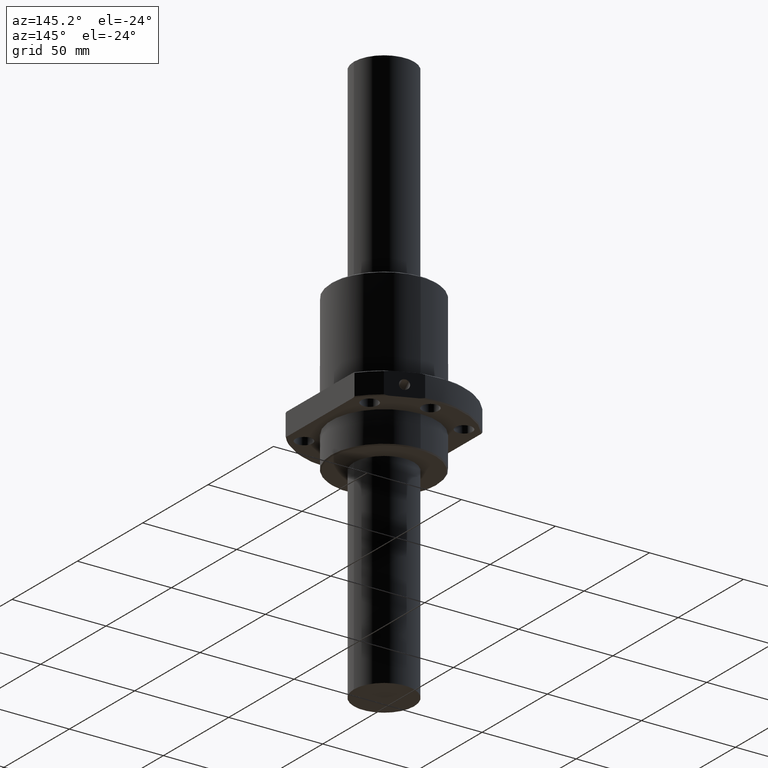
[diagram: clean part render]
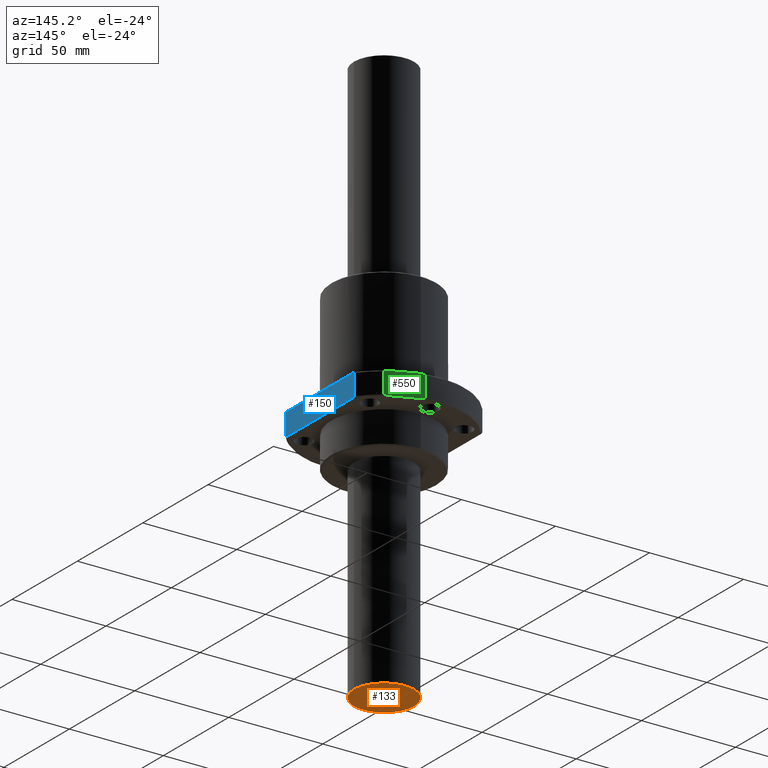
[diagram: same view with three faces highlighted in distinct colors, each labeled with its STEP entity id]
A machine part, auxiliary view with three faces highlighted in distinct colors.
Their STEP definitions:

[orange] entity #133 — the highlighted planar face has unit normal (0, 0, -1).
#133 = ADVANCED_FACE ( 'NONE', ( #1737 ), #1449, .T. ) ;
#151 = CIRCLE ( 'NONE', #1253, 16.00000000000000000 ) ;
#156 = VERTEX_POINT ( 'NONE', #1319 ) ;
#237 = DIRECTION ( 'NONE',  ( 1.000000000000000000, 0.0000000000000000000, 0.0000000000000000000 ) ) ;
#249 = DIRECTION ( 'NONE',  ( -0.0000000000000000000, 0.0000000000000000000, -1.000000000000000000 ) ) ;
#296 = CARTESIAN_POINT ( 'NONE',  ( 0.0000000000000000000, 0.0000000000000000000, -300.0000000000000000 ) ) ;
#311 = DIRECTION ( 'NONE',  ( 1.000000000000000000, 0.0000000000000000000, 0.0000000000000000000 ) ) ;
#331 = DIRECTION ( 'NONE',  ( -0.0000000000000000000, 0.0000000000000000000, -1.000000000000000000 ) ) ;
#345 = CARTESIAN_POINT ( 'NONE',  ( 0.0000000000000000000, 0.0000000000000000000, -300.0000000000000000 ) ) ;
#435 = ORIENTED_EDGE ( 'NONE', *, *, #2042, .T. ) ;
#485 = VERTEX_POINT ( 'NONE', #858 ) ;
#486 = CIRCLE ( 'NONE', #1310, 16.00000000000000000 ) ;
#510 = EDGE_LOOP ( 'NONE', ( #435, #674 ) ) ;
#674 = ORIENTED_EDGE ( 'NONE', *, *, #2037, .T. ) ;
#858 = CARTESIAN_POINT ( 'NONE',  ( 16.00000000000000000, 0.0000000000000000000, -300.0000000000000000 ) ) ;
#1253 = AXIS2_PLACEMENT_3D ( 'NONE', #296, #249, #237 ) ;
#1310 = AXIS2_PLACEMENT_3D ( 'NONE', #345, #331, #311 ) ;
#1319 = CARTESIAN_POINT ( 'NONE',  ( -16.00000000000000000, 1.959434878635765100E-015, -300.0000000000000000 ) ) ;
#1438 = DIRECTION ( 'NONE',  ( -1.000000000000000000, 0.0000000000000000000, 0.0000000000000000000 ) ) ;
#1443 = DIRECTION ( 'NONE',  ( 0.0000000000000000000, 0.0000000000000000000, -1.000000000000000000 ) ) ;
#1447 = CARTESIAN_POINT ( 'NONE',  ( 16.19200000000000000, -16.19200000000000000, -300.0000000000000000 ) ) ;
#1449 = PLANE ( 'NONE',  #1786 ) ;
#1737 = FACE_OUTER_BOUND ( 'NONE', #510, .T. ) ;
#1786 = AXIS2_PLACEMENT_3D ( 'NONE', #1447, #1443, #1438 ) ;
#2037 = EDGE_CURVE ( 'NONE', #156, #485, #486, .T. ) ;
#2042 = EDGE_CURVE ( 'NONE', #485, #156, #151, .T. ) ;

[blue] entity #150 — the highlighted planar face has unit normal (1, 0, 0).
#6 = DIRECTION ( 'NONE',  ( 0.0000000000000000000, 0.0000000000000000000, 1.000000000000000000 ) ) ;
#18 = CARTESIAN_POINT ( 'NONE',  ( -34.00038099999999700, -25.63733584119633200, -16.99999400269452100 ) ) ;
#28 = CARTESIAN_POINT ( 'NONE',  ( -34.00038099999999700, -25.86691960400935000, -17.13821669994641500 ) ) ;
#37 = CARTESIAN_POINT ( 'NONE',  ( -34.00038099999999700, -26.09598189850053300, -17.27730894206287700 ) ) ;
#70 = CARTESIAN_POINT ( 'NONE',  ( -34.00035220494341800, -26.32455571687173500, -17.41719541916327100 ) ) ;
#109 = CARTESIAN_POINT ( 'NONE',  ( -34.00035220161110800, -26.32455572117558900, -28.58279258083677000 ) ) ;
#112 = CARTESIAN_POINT ( 'NONE',  ( -34.00038099999999700, -26.09598189931892900, -28.72267905744650600 ) ) ;
#120 = CARTESIAN_POINT ( 'NONE',  ( -34.00038099999999700, -25.86691960250534400, -28.86177130097227900 ) ) ;
#122 = CARTESIAN_POINT ( 'NONE',  ( -34.00038099999999700, -25.63733583927635000, -28.99999399846142400 ) ) ;
#123 = EDGE_CURVE ( 'NONE', #643, #761, #452, .T. ) ;
#126 = VECTOR ( 'NONE', #1178, 1000.000000000000000 ) ;
#150 = ADVANCED_FACE ( 'NONE', ( #1322 ), #1338, .T. ) ;
#155 = VECTOR ( 'NONE', #6, 1000.000000000000000 ) ;
#163 = DIRECTION ( 'NONE',  ( -0.0000000000000000000, -1.000000000000000000, -0.0000000000000000000 ) ) ;
#165 = CARTESIAN_POINT ( 'NONE',  ( -34.00038099999999700, 0.0000000000000000000, -28.99999400000000100 ) ) ;
#168 = LINE ( 'NONE', #165, #1797 ) ;
#172 = EDGE_LOOP ( 'NONE', ( #339, #569, #513, #580, #694, #854, #797, #881 ) ) ;
#173 = VECTOR ( 'NONE', #1217, 1000.000000000000000 ) ;
#192 = CARTESIAN_POINT ( 'NONE',  ( -34.00038099999999700, -25.63733584119633200, -16.99999400269452100 ) ) ;
#198 = CARTESIAN_POINT ( 'NONE',  ( -34.00038099999999700, -25.63733583927635000, -28.99999399846142400 ) ) ;
#301 = EDGE_CURVE ( 'NONE', #1297, #643, #1189, .T. ) ;
#339 = ORIENTED_EDGE ( 'NONE', *, *, #123, .T. ) ;
#370 = CARTESIAN_POINT ( 'NONE',  ( -34.00038099999999700, 25.63733583672082300, -28.99999400000000100 ) ) ;
#452 = B_SPLINE_CURVE_WITH_KNOTS ( 'NONE', 3,
 ( #1475, #1472, #1471, #1470 ),
 .UNSPECIFIED., .F., .F.,
 ( 4, 4 ),
 ( 0.0000000000000000000, 0.0008039952873512137400 ),
 .UNSPECIFIED. ) ;
#460 = VERTEX_POINT ( 'NONE', #1025 ) ;
#513 = ORIENTED_EDGE ( 'NONE', *, *, #1577, .T. ) ;
#569 = ORIENTED_EDGE ( 'NONE', *, *, #1874, .T. ) ;
#572 = CARTESIAN_POINT ( 'NONE',  ( -34.00038101129310800, 26.32457800573787700, -17.41725487410141300 ) ) ;
#580 = ORIENTED_EDGE ( 'NONE', *, *, #947, .T. ) ;
#627 = CARTESIAN_POINT ( 'NONE',  ( -34.00038099999999700, 25.86693389598818600, -28.86176269547559400 ) ) ;
#632 = VERTEX_POINT ( 'NONE', #724 ) ;
#643 = VERTEX_POINT ( 'NONE', #696 ) ;
#654 = CARTESIAN_POINT ( 'NONE',  ( -34.00038099999999700, -26.32457802000000800, -22.99999400000000400 ) ) ;
#694 = ORIENTED_EDGE ( 'NONE', *, *, #967, .T. ) ;
#696 = CARTESIAN_POINT ( 'NONE',  ( -34.00038099999999700, 25.63733584041095900, -16.99999400222167600 ) ) ;
#724 = CARTESIAN_POINT ( 'NONE',  ( -34.00035220494341800, -26.32455571687173500, -17.41719541916327100 ) ) ;
#761 = VERTEX_POINT ( 'NONE', #572 ) ;
#797 = ORIENTED_EDGE ( 'NONE', *, *, #2059, .T. ) ;
#854 = ORIENTED_EDGE ( 'NONE', *, *, #1504, .T. ) ;
#881 = ORIENTED_EDGE ( 'NONE', *, *, #301, .T. ) ;
#901 = CARTESIAN_POINT ( 'NONE',  ( -34.00035220161110800, -26.32455572117558900, -28.58279258083677000 ) ) ;
#906 = VERTEX_POINT ( 'NONE', #198 ) ;
#947 = EDGE_CURVE ( 'NONE', #1610, #906, #168, .T. ) ;
#967 = EDGE_CURVE ( 'NONE', #906, #1775, #1209, .T. ) ;
#993 = B_SPLINE_CURVE_WITH_KNOTS ( 'NONE', 3,
 ( #1477, #1093, #627, #370 ),
 .UNSPECIFIED., .F., .F.,
 ( 4, 4 ),
 ( 4.021788524705640400E-012, 0.0008039953002525862000 ),
 .UNSPECIFIED. ) ;
#1025 = CARTESIAN_POINT ( 'NONE',  ( -34.00038100496205800, 26.32457801145264400, -28.58273312740600100 ) ) ;
#1093 = CARTESIAN_POINT ( 'NONE',  ( -34.00038099999999700, 26.09601042326489000, -28.72266173702931600 ) ) ;
#1178 = DIRECTION ( 'NONE',  ( 0.0000000000000000000, 1.000000000000000000, 0.0000000000000000000 ) ) ;
#1179 = CARTESIAN_POINT ( 'NONE',  ( -34.00038099999999700, 0.0000000000000000000, -16.99999400000000100 ) ) ;
#1189 = LINE ( 'NONE', #1179, #126 ) ;
#1209 = B_SPLINE_CURVE_WITH_KNOTS ( 'NONE', 3,
 ( #122, #120, #112, #109 ),
 .UNSPECIFIED., .F., .F.,
 ( 4, 4 ),
 ( 0.0000000000000000000, 0.0008039452416648863700 ),
 .UNSPECIFIED. ) ;
#1217 = DIRECTION ( 'NONE',  ( -0.0000000000000000000, -0.0000000000000000000, -1.000000000000000000 ) ) ;
#1232 = CARTESIAN_POINT ( 'NONE',  ( -34.00038100992414100, 26.32457800736067800, -22.99999399999999700 ) ) ;
#1297 = VERTEX_POINT ( 'NONE', #192 ) ;
#1318 = LINE ( 'NONE', #1232, #173 ) ;
#1322 = FACE_OUTER_BOUND ( 'NONE', #172, .T. ) ;
#1327 = DIRECTION ( 'NONE',  ( 0.0000000000000000000, 0.0000000000000000000, 1.000000000000000000 ) ) ;
#1328 = DIRECTION ( 'NONE',  ( -1.000000000000000000, 0.0000000000000000000, 0.0000000000000000000 ) ) ;
#1330 = CARTESIAN_POINT ( 'NONE',  ( -34.00038099999999700, -26.32457802000000800, -28.99999400000000100 ) ) ;
#1338 = PLANE ( 'NONE',  #1486 ) ;
#1470 = CARTESIAN_POINT ( 'NONE',  ( -34.00038101129310800, 26.32457800573787700, -17.41725487410141300 ) ) ;
#1471 = CARTESIAN_POINT ( 'NONE',  ( -34.00038099999999700, 26.09601042216658200, -17.27732626231052400 ) ) ;
#1472 = CARTESIAN_POINT ( 'NONE',  ( -34.00038100124410800, 25.86693389782090300, -17.13822530487375300 ) ) ;
#1475 = CARTESIAN_POINT ( 'NONE',  ( -34.00038099999999700, 25.63733584041095900, -16.99999400222167600 ) ) ;
#1477 = CARTESIAN_POINT ( 'NONE',  ( -34.00038100496205800, 26.32457801145264400, -28.58273312740600100 ) ) ;
#1486 = AXIS2_PLACEMENT_3D ( 'NONE', #1330, #1328, #1327 ) ;
#1504 = EDGE_CURVE ( 'NONE', #1775, #632, #1851, .T. ) ;
#1562 = CARTESIAN_POINT ( 'NONE',  ( -34.00038099999999700, 25.63733583672082300, -28.99999400000000100 ) ) ;
#1577 = EDGE_CURVE ( 'NONE', #460, #1610, #993, .T. ) ;
#1610 = VERTEX_POINT ( 'NONE', #1562 ) ;
#1636 = B_SPLINE_CURVE_WITH_KNOTS ( 'NONE', 3,
 ( #70, #37, #28, #18 ),
 .UNSPECIFIED., .F., .F.,
 ( 4, 4 ),
 ( 1.763560156194061500E-014, 0.0008039452334978928200 ),
 .UNSPECIFIED. ) ;
#1775 = VERTEX_POINT ( 'NONE', #901 ) ;
#1797 = VECTOR ( 'NONE', #163, 1000.000000000000000 ) ;
#1851 = LINE ( 'NONE', #654, #155 ) ;
#1874 = EDGE_CURVE ( 'NONE', #761, #460, #1318, .T. ) ;
#2059 = EDGE_CURVE ( 'NONE', #632, #1297, #1636, .T. ) ;

[green] entity #550 — the highlighted planar face has unit normal (0.3825, 0.924, 0).
#44 = ORIENTED_EDGE ( 'NONE', *, *, #1685, .T. ) ;
#57 = EDGE_CURVE ( 'NONE', #1606, #1869, #582, .T. ) ;
#94 = CARTESIAN_POINT ( 'NONE',  ( -7.544429190102001700, 42.33298644936704100, -28.58285373700947200 ) ) ;
#144 = EDGE_CURVE ( 'NONE', #1751, #916, #1422, .T. ) ;
#153 = VECTOR ( 'NONE', #537, 1000.000000000000000 ) ;
#180 = CARTESIAN_POINT ( 'NONE',  ( -9.575712611494502400, 41.49222366820119800, -16.99999400000000100 ) ) ;
#181 = B_SPLINE_CURVE_WITH_KNOTS ( 'NONE', 3,
 ( #1871, #1849, #1836, #1827 ),
 .UNSPECIFIED., .F., .F.,
 ( 4, 4 ),
 ( 1.142976520344516900E-012, 0.002237903065227405400 ),
 .UNSPECIFIED. ) ;
#288 = EDGE_LOOP ( 'NONE', ( #1839, #1950 ) ) ;
#302 = EDGE_LOOP ( 'NONE', ( #1828, #1899, #1982, #1850, #2005, #2034, #44, #304 ) ) ;
#304 = ORIENTED_EDGE ( 'NONE', *, *, #144, .T. ) ;
#487 = VERTEX_POINT ( 'NONE', #855 ) ;
#537 = DIRECTION ( 'NONE',  ( -0.0000000000000000000, -0.0000000000000000000, -1.000000000000000000 ) ) ;
#538 = CARTESIAN_POINT ( 'NONE',  ( -7.544433105000000400, 42.33300835400000000, -22.99999400000000400 ) ) ;
#539 = LINE ( 'NONE', #538, #153 ) ;
#550 = ADVANCED_FACE ( 'NONE', ( #1088, #554 ), #837, .T. ) ;
#554 = FACE_OUTER_BOUND ( 'NONE', #302, .T. ) ;
#571 = EDGE_CURVE ( 'NONE', #916, #1858, #1689, .T. ) ;
#582 = CIRCLE ( 'NONE', #1175, 2.500000000023447900 ) ;
#612 = CARTESIAN_POINT ( 'NONE',  ( -9.575712613358597000, 41.49222366742961300, -28.99999400033264200 ) ) ;
#742 = VERTEX_POINT ( 'NONE', #612 ) ;
#793 = EDGE_CURVE ( 'NONE', #1858, #1017, #539, .T. ) ;
#811 = CARTESIAN_POINT ( 'NONE',  ( -7.544429190102005300, 42.33298644936703400, -17.41713426299052300 ) ) ;
#814 = CARTESIAN_POINT ( 'NONE',  ( -8.218491255076264300, 42.05400304325375800, -17.26075813530623600 ) ) ;
#816 = CARTESIAN_POINT ( 'NONE',  ( -8.895522926660019500, 41.77376693618508300, -17.12137046055179100 ) ) ;
#817 = DIRECTION ( 'NONE',  ( -0.9239758091619514300, -0.3824509172214351500, 0.0000000000000000000 ) ) ;
#818 = CARTESIAN_POINT ( 'NONE',  ( -9.575712611494502400, 41.49222366820119800, -16.99999400000000100 ) ) ;
#820 = CARTESIAN_POINT ( 'NONE',  ( -9.575712613358597000, 41.49222366742961300, -28.99999400033264200 ) ) ;
#822 = AXIS2_PLACEMENT_3D ( 'NONE', #835, #834, #830 ) ;
#829 = CARTESIAN_POINT ( 'NONE',  ( -8.895522929134516600, 41.77376693516084300, -28.87861753994618400 ) ) ;
#830 = DIRECTION ( 'NONE',  ( -0.9239758091619514300, -0.3824509172214350900, 0.0000000000000000000 ) ) ;
#834 = DIRECTION ( 'NONE',  ( -0.3824509172214351500, 0.9239758091619515400, 0.0000000000000000000 ) ) ;
#835 = CARTESIAN_POINT ( 'NONE',  ( -7.544433105000000400, 42.33300835400000000, -28.99999400000000100 ) ) ;
#836 = CARTESIAN_POINT ( 'NONE',  ( -8.218491255687300900, 42.05400304300083300, -28.73922986483554400 ) ) ;
#837 = PLANE ( 'NONE',  #822 ) ;
#849 = CARTESIAN_POINT ( 'NONE',  ( -7.544429190102001700, 42.33298644936704100, -28.58285373700947200 ) ) ;
#855 = CARTESIAN_POINT ( 'NONE',  ( -24.58171687901121800, 35.28095705441189300, -17.41722486824906800 ) ) ;
#893 = B_SPLINE_CURVE_WITH_KNOTS ( 'NONE', 3,
 ( #849, #836, #829, #820 ),
 .UNSPECIFIED., .F., .F.,
 ( 4, 4 ),
 ( 8.790950152949706100E-015, 0.002237631949575892200 ),
 .UNSPECIFIED. ) ;
#899 = VECTOR ( 'NONE', #817, 1000.000000000000000 ) ;
#916 = VERTEX_POINT ( 'NONE', #180 ) ;
#958 = LINE ( 'NONE', #1244, #899 ) ;
#981 = CARTESIAN_POINT ( 'NONE',  ( -23.90758891803728000, 35.55999126060933700, -28.73919607534506300 ) ) ;
#1017 = VERTEX_POINT ( 'NONE', #94 ) ;
#1088 = FACE_BOUND ( 'NONE', #288, .T. ) ;
#1116 = CARTESIAN_POINT ( 'NONE',  ( -22.55020344996156500, 36.12183856455494900, -16.99999399962962700 ) ) ;
#1120 = CARTESIAN_POINT ( 'NONE',  ( -24.58171688993513700, 35.28095704715842400, -28.58276312965875800 ) ) ;
#1175 = AXIS2_PLACEMENT_3D ( 'NONE', #1525, #1522, #1521 ) ;
#1196 = CARTESIAN_POINT ( 'NONE',  ( -13.75313547011581300, 39.76310999616483600, -22.99999399999999700 ) ) ;
#1244 = CARTESIAN_POINT ( 'NONE',  ( -16.06307499299999700, 38.80698270349999700, -28.99999400000000100 ) ) ;
#1257 = CARTESIAN_POINT ( 'NONE',  ( -18.37301451595940400, 37.85085541001678400, -22.99999399999999700 ) ) ;
#1307 = CARTESIAN_POINT ( 'NONE',  ( -7.544429190102005300, 42.33298644936703400, -17.41713426299052300 ) ) ;
#1355 = EDGE_CURVE ( 'NONE', #742, #1635, #958, .T. ) ;
#1418 = DIRECTION ( 'NONE',  ( 0.9239758091619514300, 0.3824509172214351500, -0.0000000000000000000 ) ) ;
#1421 = CARTESIAN_POINT ( 'NONE',  ( -16.06307499299999700, 38.80698270349999700, -16.99999400000000100 ) ) ;
#1422 = LINE ( 'NONE', #1421, #1578 ) ;
#1464 = CARTESIAN_POINT ( 'NONE',  ( -22.55020345203712000, 36.12183856369584600, -28.99999400000000100 ) ) ;
#1474 = DIRECTION ( 'NONE',  ( -0.9239758091600525100, -0.3824509172260227000, 0.0000000000000000000 ) ) ;
#1483 = DIRECTION ( 'NONE',  ( -0.3824509172260231500, 0.9239758091600524000, 6.411370109590979200E-016 ) ) ;
#1494 = CARTESIAN_POINT ( 'NONE',  ( -16.06307499303761000, 38.80698270309081000, -22.99999399999999700 ) ) ;
#1506 = CARTESIAN_POINT ( 'NONE',  ( -22.55020345203712000, 36.12183856369584600, -28.99999400000000100 ) ) ;
#1511 = EDGE_CURVE ( 'NONE', #1635, #1646, #1739, .T. ) ;
#1521 = DIRECTION ( 'NONE',  ( -0.9239758091600525100, -0.3824509172260227000, 0.0000000000000000000 ) ) ;
#1522 = DIRECTION ( 'NONE',  ( -0.3824509172260231500, 0.9239758091600524000, 6.411370109590979200E-016 ) ) ;
#1525 = CARTESIAN_POINT ( 'NONE',  ( -16.06307499303761000, 38.80698270309081000, -22.99999399999999700 ) ) ;
#1554 = AXIS2_PLACEMENT_3D ( 'NONE', #1494, #1483, #1474 ) ;
#1578 = VECTOR ( 'NONE', #1418, 1000.000000000000000 ) ;
#1606 = VERTEX_POINT ( 'NONE', #1196 ) ;
#1635 = VERTEX_POINT ( 'NONE', #1464 ) ;
#1646 = VERTEX_POINT ( 'NONE', #1654 ) ;
#1654 = CARTESIAN_POINT ( 'NONE',  ( -24.58171688993513700, 35.28095704715842400, -28.58276312965875800 ) ) ;
#1680 = EDGE_CURVE ( 'NONE', #1646, #487, #1969, .T. ) ;
#1685 = EDGE_CURVE ( 'NONE', #487, #1751, #181, .T. ) ;
#1689 = B_SPLINE_CURVE_WITH_KNOTS ( 'NONE', 3,
 ( #818, #816, #814, #811 ),
 .UNSPECIFIED., .F., .F.,
 ( 4, 4 ),
 ( 6.893972225267950800E-013, 0.002237631948229959300 ),
 .UNSPECIFIED. ) ;
#1712 = CIRCLE ( 'NONE', #1554, 2.500000000023447900 ) ;
#1739 = B_SPLINE_CURVE_WITH_KNOTS ( 'NONE', 3,
 ( #1506, #1812, #981, #1120 ),
 .UNSPECIFIED., .F., .F.,
 ( 4, 4 ),
 ( 9.438897859446551700E-012, 0.002237903077824111600 ),
 .UNSPECIFIED. ) ;
#1741 = EDGE_CURVE ( 'NONE', #1869, #1606, #1712, .T. ) ;
#1751 = VERTEX_POINT ( 'NONE', #1116 ) ;
#1812 = CARTESIAN_POINT ( 'NONE',  ( -23.23047559063795800, 35.84026116655158500, -28.87860282612962600 ) ) ;
#1827 = CARTESIAN_POINT ( 'NONE',  ( -22.55020344996156500, 36.12183856455494900, -16.99999399962962700 ) ) ;
#1828 = ORIENTED_EDGE ( 'NONE', *, *, #571, .T. ) ;
#1836 = CARTESIAN_POINT ( 'NONE',  ( -23.23047559377322500, 35.84026116525383500, -17.12138517451096900 ) ) ;
#1839 = ORIENTED_EDGE ( 'NONE', *, *, #1741, .F. ) ;
#1849 = CARTESIAN_POINT ( 'NONE',  ( -23.90758891440773900, 35.55999126211168000, -17.26079192389872900 ) ) ;
#1850 = ORIENTED_EDGE ( 'NONE', *, *, #1355, .T. ) ;
#1858 = VERTEX_POINT ( 'NONE', #1307 ) ;
#1869 = VERTEX_POINT ( 'NONE', #1257 ) ;
#1871 = CARTESIAN_POINT ( 'NONE',  ( -24.58171687901121800, 35.28095705441189300, -17.41722486824906800 ) ) ;
#1873 = DIRECTION ( 'NONE',  ( 0.0000000000000000000, 0.0000000000000000000, 1.000000000000000000 ) ) ;
#1883 = CARTESIAN_POINT ( 'NONE',  ( -24.58171688099999500, 35.28095705299999500, -22.99999400000000400 ) ) ;
#1899 = ORIENTED_EDGE ( 'NONE', *, *, #793, .T. ) ;
#1950 = ORIENTED_EDGE ( 'NONE', *, *, #57, .F. ) ;
#1959 = EDGE_CURVE ( 'NONE', #1017, #742, #893, .T. ) ;
#1967 = VECTOR ( 'NONE', #1873, 1000.000000000000000 ) ;
#1969 = LINE ( 'NONE', #1883, #1967 ) ;
#1982 = ORIENTED_EDGE ( 'NONE', *, *, #1959, .T. ) ;
#2005 = ORIENTED_EDGE ( 'NONE', *, *, #1511, .T. ) ;
#2034 = ORIENTED_EDGE ( 'NONE', *, *, #1680, .T. ) ;